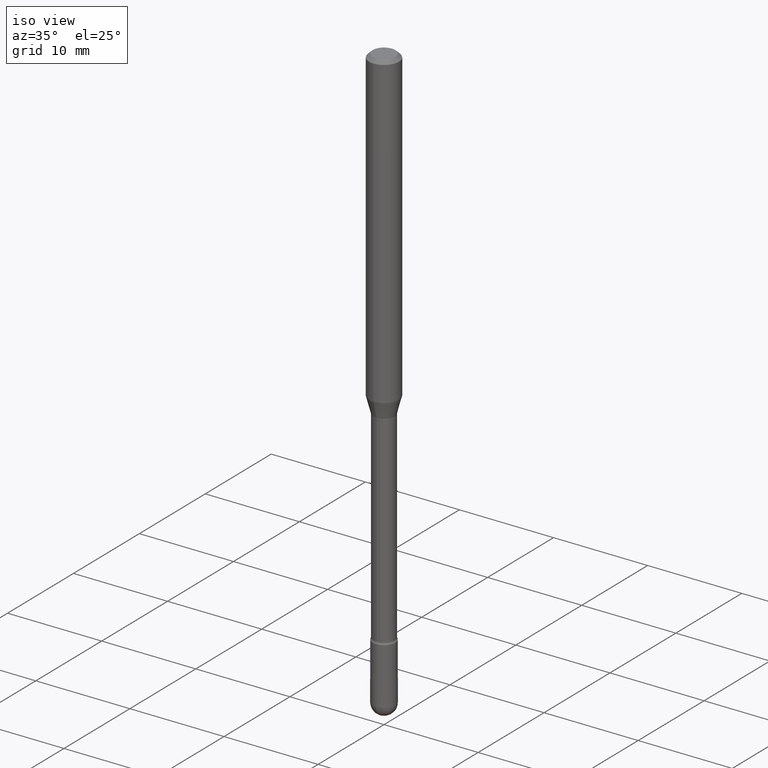
[diagram: clean part render]
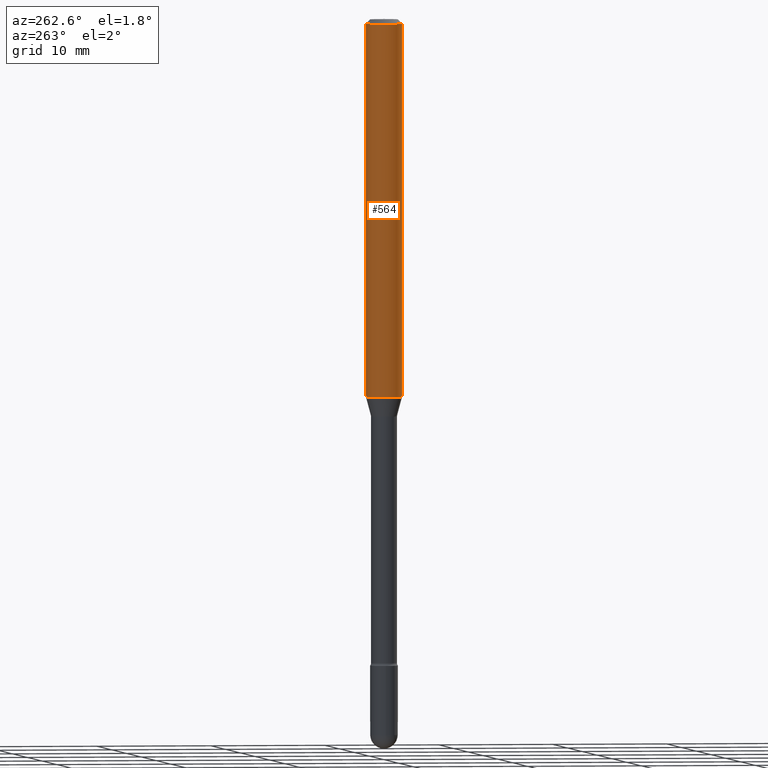
[diagram: tour spotlight — one face highlighted and labeled with its STEP entity id]
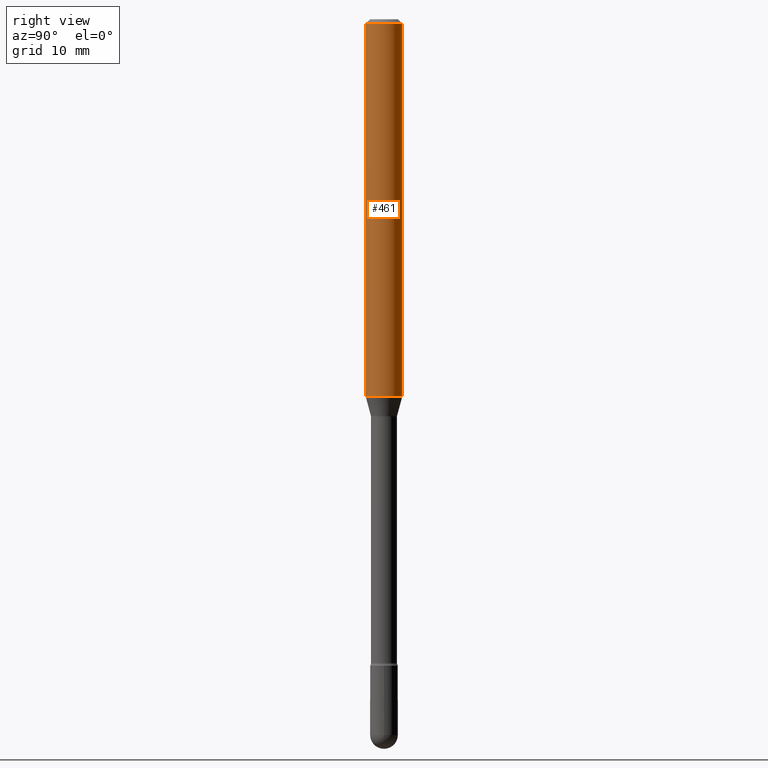
[diagram: tour spotlight — one face highlighted and labeled with its STEP entity id]
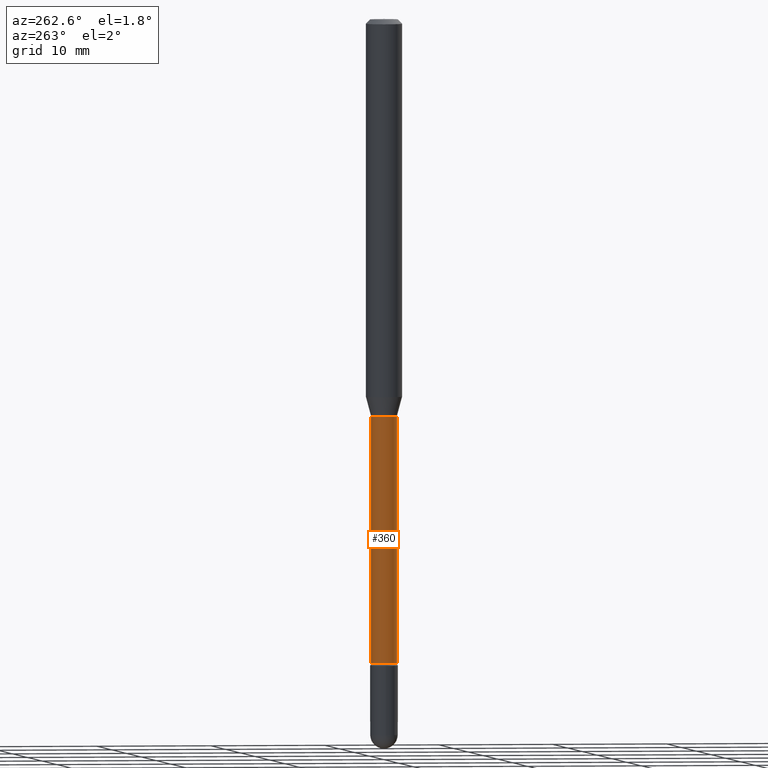
[diagram: tour spotlight — one face highlighted and labeled with its STEP entity id]
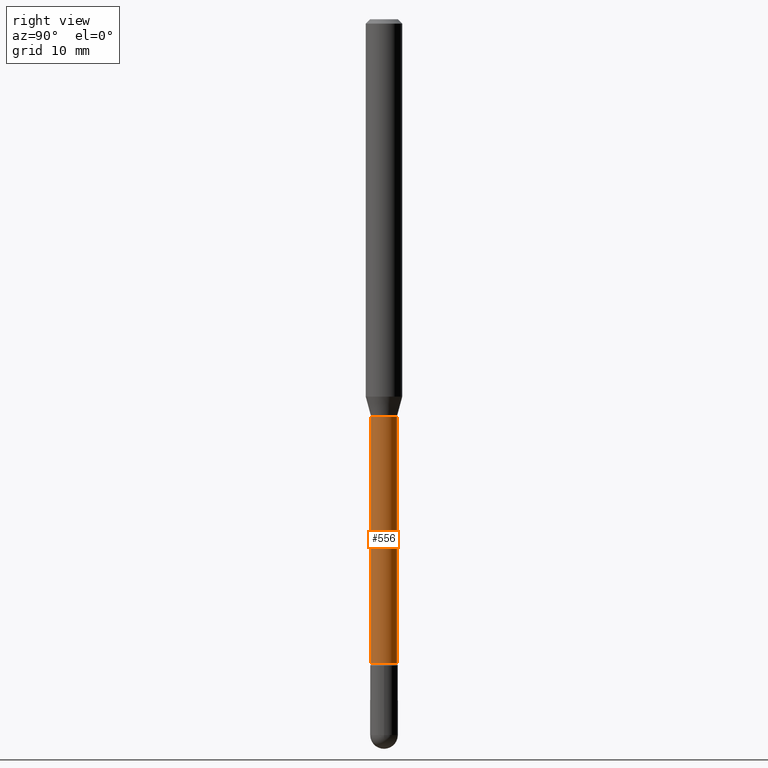
[diagram: tour spotlight — one face highlighted and labeled with its STEP entity id]
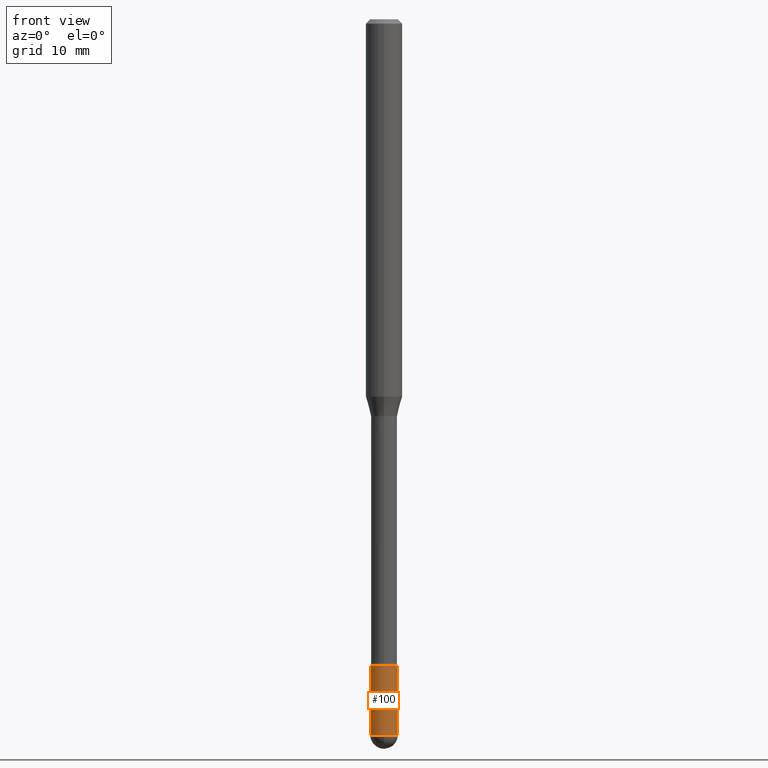
[diagram: tour spotlight — one face highlighted and labeled with its STEP entity id]
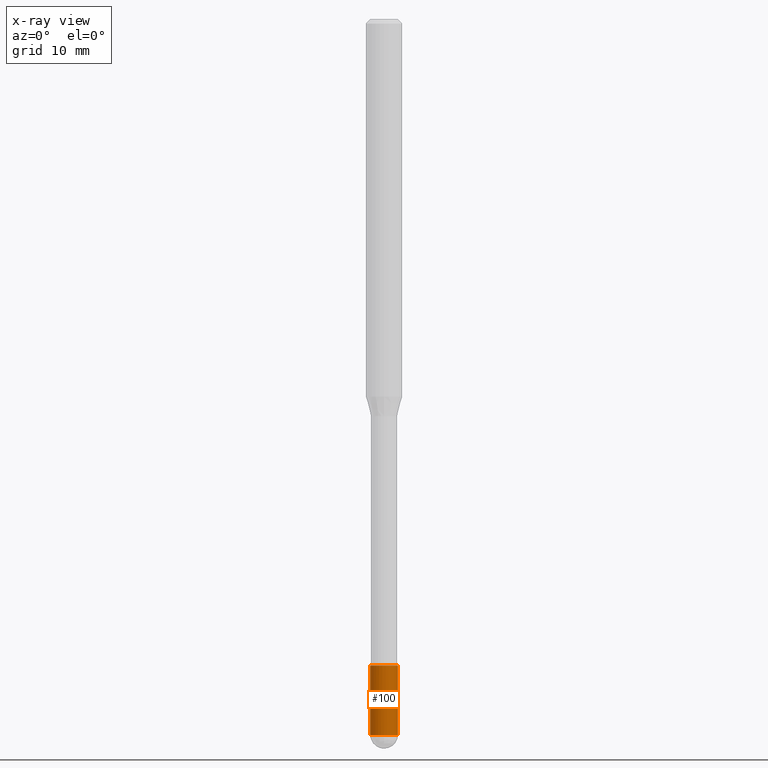
[diagram: x-ray of the same camera — body ghosted, this tour face saturated]
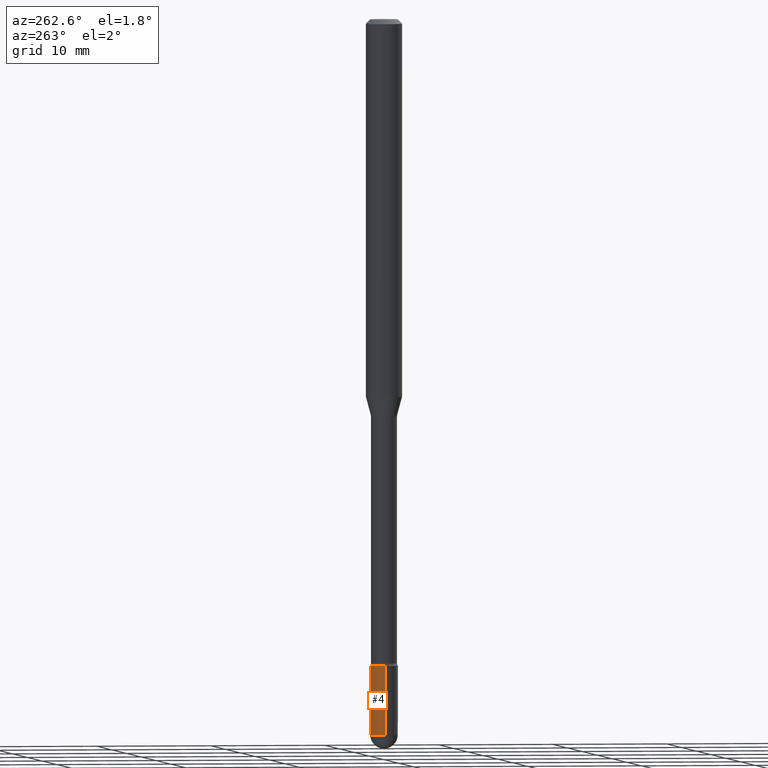
[diagram: tour spotlight — one face highlighted and labeled with its STEP entity id]
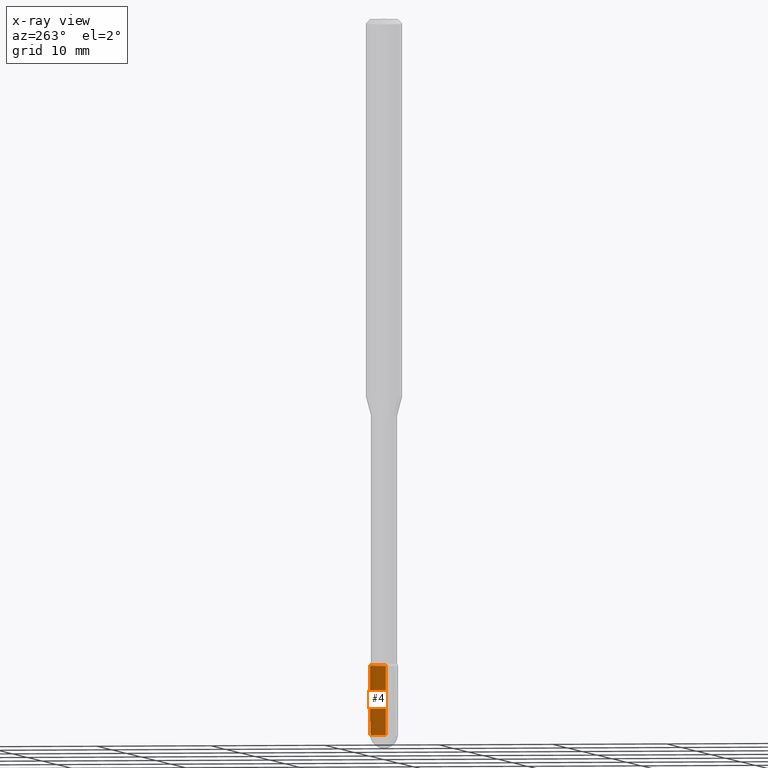
[diagram: x-ray of the same camera — body ghosted, this tour face saturated]
A machine part: a face-by-face anatomy tour. The part has 19 B-rep faces; the first image is the clean iso view, then the 6 largest visible faces are spotlighted one at a time (largest first), each with its STEP entity span.

Face 1 — auxiliary view, entity #564. In plain terms, the highlighted cylindrical surface (edge-blend (fillet) strip) has radius 1.5875 mm, axis along (-0, 0, 1).
Definition (entity closure, byte-faithful):
#13 = VERTEX_POINT ( 'NONE', #193 ) ;
#24 = ORIENTED_EDGE ( 'NONE', *, *, #188, .T. ) ;
#29 = DIRECTION ( 'NONE',  ( -2.445461781788735863E-29, 3.491491398178595118E-15, 1.000000000000000000 ) ) ;
#31 = CARTESIAN_POINT ( 'NONE',  ( 3.162918434258458957E-29, -4.515835245757259630E-15, -1.293382893084895846 ) ) ;
#37 = EDGE_CURVE ( 'NONE', #236, #245, #309, .T. ) ;
#83 = DIRECTION ( 'NONE',  ( -2.445461781788735863E-29, 3.491491398178595118E-15, 1.000000000000000000 ) ) ;
#85 = CIRCLE ( 'NONE', #356, 0.06250000000000000000 ) ;
#96 = VECTOR ( 'NONE', #529, 39.37007874015748143 ) ;
#101 = CARTESIAN_POINT ( 'NONE',  ( -4.364351673553916201E-16, -0.06250000000000000000, 6.962916112774082088E-16 ) ) ;
#111 = CARTESIAN_POINT ( 'NONE',  ( 3.668192672683123885E-31, -5.237237097267922061E-17, -0.01500000000000008271 ) ) ;
#127 = EDGE_CURVE ( 'NONE', #13, #214, #85, .T. ) ;
#165 = EDGE_CURVE ( 'NONE', #13, #236, #273, .T. ) ;
#171 = DIRECTION ( 'NONE',  ( -6.982962677686265922E-15, -1.000000000000000000, 4.370956789862821150E-15 ) ) ;
#188 = EDGE_CURVE ( 'NONE', #214, #245, #478, .T. ) ;
#193 = CARTESIAN_POINT ( 'NONE',  ( 4.440892098500943678E-16, 0.06249999999999551747, -1.293382893084896068 ) ) ;
#203 = CYLINDRICAL_SURFACE ( 'NONE', #513, 0.06250000000000000000 ) ;
#214 = VERTEX_POINT ( 'NONE', #224 ) ;
#224 = CARTESIAN_POINT ( 'NONE',  ( -4.364351673553597698E-16, -0.06250000000000448253, -1.293382893084895402 ) ) ;
#230 = EDGE_LOOP ( 'NONE', ( #253, #375, #24, #254 ) ) ;
#236 = VERTEX_POINT ( 'NONE', #451 ) ;
#245 = VERTEX_POINT ( 'NONE', #272 ) ;
#253 = ORIENTED_EDGE ( 'NONE', *, *, #165, .F. ) ;
#254 = ORIENTED_EDGE ( 'NONE', *, *, #37, .F. ) ;
#266 = DIRECTION ( 'NONE',  ( -2.445461781788736143E-29, 3.491491398178595118E-15, 1.000000000000000000 ) ) ;
#272 = CARTESIAN_POINT ( 'NONE',  ( -4.364351673553912750E-16, -0.06250000000000005551, -0.01499999999999986587 ) ) ;
#273 = LINE ( 'NONE', #487, #388 ) ;
#295 = DIRECTION ( 'NONE',  ( -6.982962677686265922E-15, -1.000000000000000000, 3.483106191921935554E-15 ) ) ;
#309 = CIRCLE ( 'NONE', #488, 0.06250000000000000000 ) ;
#331 = DIRECTION ( 'NONE',  ( -6.982962677686265922E-15, -1.000000000000000000, 3.491491398178594723E-15 ) ) ;
#356 = AXIS2_PLACEMENT_3D ( 'NONE', #31, #554, #171 ) ;
#375 = ORIENTED_EDGE ( 'NONE', *, *, #127, .T. ) ;
#380 = FACE_OUTER_BOUND ( 'NONE', #230, .T. ) ;
#388 = VECTOR ( 'NONE', #266, 39.37007874015748143 ) ;
#390 = CARTESIAN_POINT ( 'NONE',  ( -1.169113584055446105E-44, 1.669184350826100908E-30, 4.780733988912460139E-16 ) ) ;
#451 = CARTESIAN_POINT ( 'NONE',  ( 4.440892098500943678E-16, 0.06249999999999995143, -0.01500000000000030129 ) ) ;
#478 = LINE ( 'NONE', #101, #96 ) ;
#487 = CARTESIAN_POINT ( 'NONE',  ( 4.440892098500625669E-16, 0.06250000000000000000, 2.598551865050838684E-16 ) ) ;
#488 = AXIS2_PLACEMENT_3D ( 'NONE', #111, #29, #295 ) ;
#513 = AXIS2_PLACEMENT_3D ( 'NONE', #390, #83, #331 ) ;
#529 = DIRECTION ( 'NONE',  ( -2.445461781788736143E-29, 3.491491398178595118E-15, 1.000000000000000000 ) ) ;
#554 = DIRECTION ( 'NONE',  ( -2.445461781788735863E-29, 3.491491398178595118E-15, 1.000000000000000000 ) ) ;
#564 = ADVANCED_FACE ( 'NONE', ( #380 ), #203, .T. ) ;

Face 2 — right view, entity #461. In plain terms, the highlighted cylindrical surface (edge-blend (fillet) strip) has radius 1.5875 mm, axis along (-0, 0, 1).
Definition (entity closure, byte-faithful):
#13 = VERTEX_POINT ( 'NONE', #193 ) ;
#22 = FACE_OUTER_BOUND ( 'NONE', #491, .T. ) ;
#96 = VECTOR ( 'NONE', #529, 39.37007874015748143 ) ;
#101 = CARTESIAN_POINT ( 'NONE',  ( -4.364351673553916201E-16, -0.06250000000000000000, 6.962916112774082088E-16 ) ) ;
#107 = CARTESIAN_POINT ( 'NONE',  ( -1.169113584055446105E-44, 1.669184350826100908E-30, 4.780733988912460139E-16 ) ) ;
#130 = CIRCLE ( 'NONE', #287, 0.06250000000000000000 ) ;
#141 = DIRECTION ( 'NONE',  ( -6.982962677686265922E-15, -1.000000000000000000, 3.483106191921935554E-15 ) ) ;
#165 = EDGE_CURVE ( 'NONE', #13, #236, #273, .T. ) ;
#169 = ORIENTED_EDGE ( 'NONE', *, *, #204, .T. ) ;
#182 = DIRECTION ( 'NONE',  ( -2.445461781788735863E-29, 3.491491398178595118E-15, 1.000000000000000000 ) ) ;
#188 = EDGE_CURVE ( 'NONE', #214, #245, #478, .T. ) ;
#193 = CARTESIAN_POINT ( 'NONE',  ( 4.440892098500943678E-16, 0.06249999999999551747, -1.293382893084896068 ) ) ;
#197 = DIRECTION ( 'NONE',  ( -2.445461781788735863E-29, 3.491491398178595118E-15, 1.000000000000000000 ) ) ;
#200 = EDGE_CURVE ( 'NONE', #245, #236, #505, .T. ) ;
#204 = EDGE_CURVE ( 'NONE', #214, #13, #130, .T. ) ;
#214 = VERTEX_POINT ( 'NONE', #224 ) ;
#224 = CARTESIAN_POINT ( 'NONE',  ( -4.364351673553597698E-16, -0.06250000000000448253, -1.293382893084895402 ) ) ;
#227 = CARTESIAN_POINT ( 'NONE',  ( 3.668192672683123885E-31, -5.237237097267922061E-17, -0.01500000000000008271 ) ) ;
#236 = VERTEX_POINT ( 'NONE', #451 ) ;
#245 = VERTEX_POINT ( 'NONE', #272 ) ;
#266 = DIRECTION ( 'NONE',  ( -2.445461781788736143E-29, 3.491491398178595118E-15, 1.000000000000000000 ) ) ;
#272 = CARTESIAN_POINT ( 'NONE',  ( -4.364351673553912750E-16, -0.06250000000000005551, -0.01499999999999986587 ) ) ;
#273 = LINE ( 'NONE', #487, #388 ) ;
#287 = AXIS2_PLACEMENT_3D ( 'NONE', #409, #304, #354 ) ;
#304 = DIRECTION ( 'NONE',  ( -2.445461781788735863E-29, 3.491491398178595118E-15, 1.000000000000000000 ) ) ;
#347 = ORIENTED_EDGE ( 'NONE', *, *, #165, .T. ) ;
#354 = DIRECTION ( 'NONE',  ( -6.982962677686265922E-15, -1.000000000000000000, 4.370956789862821150E-15 ) ) ;
#388 = VECTOR ( 'NONE', #266, 39.37007874015748143 ) ;
#400 = ORIENTED_EDGE ( 'NONE', *, *, #200, .F. ) ;
#409 = CARTESIAN_POINT ( 'NONE',  ( 3.162918434258458957E-29, -4.515835245757259630E-15, -1.293382893084895846 ) ) ;
#433 = ORIENTED_EDGE ( 'NONE', *, *, #188, .F. ) ;
#451 = CARTESIAN_POINT ( 'NONE',  ( 4.440892098500943678E-16, 0.06249999999999995143, -0.01500000000000030129 ) ) ;
#457 = CYLINDRICAL_SURFACE ( 'NONE', #496, 0.06250000000000000000 ) ;
#459 = DIRECTION ( 'NONE',  ( -6.982962677686265922E-15, -1.000000000000000000, 3.491491398178594723E-15 ) ) ;
#461 = ADVANCED_FACE ( 'NONE', ( #22 ), #457, .T. ) ;
#478 = LINE ( 'NONE', #101, #96 ) ;
#487 = CARTESIAN_POINT ( 'NONE',  ( 4.440892098500625669E-16, 0.06250000000000000000, 2.598551865050838684E-16 ) ) ;
#491 = EDGE_LOOP ( 'NONE', ( #169, #347, #400, #433 ) ) ;
#496 = AXIS2_PLACEMENT_3D ( 'NONE', #107, #197, #459 ) ;
#505 = CIRCLE ( 'NONE', #562, 0.06250000000000000000 ) ;
#529 = DIRECTION ( 'NONE',  ( -2.445461781788736143E-29, 3.491491398178595118E-15, 1.000000000000000000 ) ) ;
#562 = AXIS2_PLACEMENT_3D ( 'NONE', #227, #182, #141 ) ;

Face 3 — auxiliary view, entity #360. In plain terms, the highlighted cylindrical surface (edge-blend (fillet) strip) has radius 1.1341 mm, axis along (-0, 0, 1).
Definition (entity closure, byte-faithful):
#11 = DIRECTION ( 'NONE',  ( -2.445461781788736143E-29, 3.491491398178595118E-15, 1.000000000000000000 ) ) ;
#12 = CARTESIAN_POINT ( 'NONE',  ( 3.330657290502586691E-29, -4.755323254966016992E-15, -1.361974787463811287 ) ) ;
#17 = EDGE_CURVE ( 'NONE', #306, #251, #174, .T. ) ;
#34 = DIRECTION ( 'NONE',  ( -6.982962677686265922E-15, -1.000000000000000000, 6.118360568117040476E-15 ) ) ;
#50 = FACE_OUTER_BOUND ( 'NONE', #386, .T. ) ;
#67 = VECTOR ( 'NONE', #11, 39.37007874015748143 ) ;
#70 = CYLINDRICAL_SURFACE ( 'NONE', #300, 0.04465000000000004382 ) ;
#71 = DIRECTION ( 'NONE',  ( -6.982962677686265922E-15, -1.000000000000000000, 6.118360568117050731E-15 ) ) ;
#75 = AXIS2_PLACEMENT_3D ( 'NONE', #12, #374, #71 ) ;
#90 = EDGE_CURVE ( 'NONE', #338, #306, #383, .T. ) ;
#98 = CIRCLE ( 'NONE', #237, 0.04465000000000007851 ) ;
#144 = CARTESIAN_POINT ( 'NONE',  ( -3.117892835586584493E-16, -0.04465000000000475533, -1.361974787463811065 ) ) ;
#164 = DIRECTION ( 'NONE',  ( -2.445461781788735863E-29, 3.491491398178595118E-15, 1.000000000000000000 ) ) ;
#166 = DIRECTION ( 'NONE',  ( -2.445461781788736143E-29, 3.491491398178595118E-15, 1.000000000000000000 ) ) ;
#174 = CIRCLE ( 'NONE', #75, 0.04465000000000000219 ) ;
#206 = ORIENTED_EDGE ( 'NONE', *, *, #366, .T. ) ;
#229 = DIRECTION ( 'NONE',  ( -6.982962677686265922E-15, -1.000000000000000000, 3.491491398178596301E-15 ) ) ;
#237 = AXIS2_PLACEMENT_3D ( 'NONE', #256, #164, #34 ) ;
#242 = CARTESIAN_POINT ( 'NONE',  ( -3.117892835586383826E-16, -0.04465000000000778069, -2.206203551853162637 ) ) ;
#251 = VERTEX_POINT ( 'NONE', #144 ) ;
#256 = CARTESIAN_POINT ( 'NONE',  ( 5.395186468903473555E-29, -7.702940723926383539E-15, -2.206203551853163081 ) ) ;
#284 = ORIENTED_EDGE ( 'NONE', *, *, #90, .F. ) ;
#300 = AXIS2_PLACEMENT_3D ( 'NONE', #410, #534, #229 ) ;
#306 = VERTEX_POINT ( 'NONE', #404 ) ;
#318 = LINE ( 'NONE', #420, #67 ) ;
#338 = VERTEX_POINT ( 'NONE', #524 ) ;
#360 = ADVANCED_FACE ( 'NONE', ( #50 ), #70, .T. ) ;
#366 = EDGE_CURVE ( 'NONE', #426, #251, #318, .T. ) ;
#374 = DIRECTION ( 'NONE',  ( -2.445461781788735863E-29, 3.491491398178595118E-15, 1.000000000000000000 ) ) ;
#383 = LINE ( 'NONE', #551, #444 ) ;
#386 = EDGE_LOOP ( 'NONE', ( #284, #447, #206, #399 ) ) ;
#399 = ORIENTED_EDGE ( 'NONE', *, *, #17, .F. ) ;
#404 = CARTESIAN_POINT ( 'NONE',  ( 3.172573315169389334E-16, 0.04464999999999524904, -1.361974787463811509 ) ) ;
#410 = CARTESIAN_POINT ( 'NONE',  ( -1.169113584055446105E-44, 1.669184350826100908E-30, 4.780733988912460139E-16 ) ) ;
#420 = CARTESIAN_POINT ( 'NONE',  ( -3.117892835586920745E-16, -0.04465000000000004382, 6.339684898199205096E-16 ) ) ;
#426 = VERTEX_POINT ( 'NONE', #242 ) ;
#444 = VECTOR ( 'NONE', #166, 39.37007874015748143 ) ;
#447 = ORIENTED_EDGE ( 'NONE', *, *, #540, .T. ) ;
#524 = CARTESIAN_POINT ( 'NONE',  ( 3.273825655015205278E-16, 0.04464999999999237634, -2.206203551853163081 ) ) ;
#534 = DIRECTION ( 'NONE',  ( -2.445461781788735863E-29, 3.491491398178595118E-15, 1.000000000000000000 ) ) ;
#540 = EDGE_CURVE ( 'NONE', #338, #426, #98, .T. ) ;
#551 = CARTESIAN_POINT ( 'NONE',  ( 3.172573315168849951E-16, 0.04465000000000004382, 3.221783079625716661E-16 ) ) ;

Face 4 — right view, entity #556. In plain terms, the highlighted cylindrical surface (edge-blend (fillet) strip) has radius 1.1341 mm, axis along (-0, 0, 1).
Definition (entity closure, byte-faithful):
#11 = DIRECTION ( 'NONE',  ( -2.445461781788736143E-29, 3.491491398178595118E-15, 1.000000000000000000 ) ) ;
#33 = AXIS2_PLACEMENT_3D ( 'NONE', #312, #485, #49 ) ;
#40 = DIRECTION ( 'NONE',  ( -6.982962677686265922E-15, -1.000000000000000000, 3.491491398178596301E-15 ) ) ;
#49 = DIRECTION ( 'NONE',  ( -6.982962677686265922E-15, -1.000000000000000000, 6.118360568117040476E-15 ) ) ;
#67 = VECTOR ( 'NONE', #11, 39.37007874015748143 ) ;
#77 = AXIS2_PLACEMENT_3D ( 'NONE', #250, #437, #40 ) ;
#90 = EDGE_CURVE ( 'NONE', #338, #306, #383, .T. ) ;
#144 = CARTESIAN_POINT ( 'NONE',  ( -3.117892835586584493E-16, -0.04465000000000475533, -1.361974787463811065 ) ) ;
#166 = DIRECTION ( 'NONE',  ( -2.445461781788736143E-29, 3.491491398178595118E-15, 1.000000000000000000 ) ) ;
#175 = CIRCLE ( 'NONE', #33, 0.04465000000000007851 ) ;
#192 = CARTESIAN_POINT ( 'NONE',  ( 3.330657290502586691E-29, -4.755323254966016992E-15, -1.361974787463811287 ) ) ;
#195 = ORIENTED_EDGE ( 'NONE', *, *, #366, .F. ) ;
#210 = FACE_OUTER_BOUND ( 'NONE', #260, .T. ) ;
#220 = ORIENTED_EDGE ( 'NONE', *, *, #90, .T. ) ;
#242 = CARTESIAN_POINT ( 'NONE',  ( -3.117892835586383826E-16, -0.04465000000000778069, -2.206203551853162637 ) ) ;
#250 = CARTESIAN_POINT ( 'NONE',  ( -1.169113584055446105E-44, 1.669184350826100908E-30, 4.780733988912460139E-16 ) ) ;
#251 = VERTEX_POINT ( 'NONE', #144 ) ;
#252 = CYLINDRICAL_SURFACE ( 'NONE', #77, 0.04465000000000004382 ) ;
#255 = CIRCLE ( 'NONE', #274, 0.04465000000000000219 ) ;
#260 = EDGE_LOOP ( 'NONE', ( #364, #220, #281, #195 ) ) ;
#274 = AXIS2_PLACEMENT_3D ( 'NONE', #192, #321, #371 ) ;
#281 = ORIENTED_EDGE ( 'NONE', *, *, #413, .F. ) ;
#306 = VERTEX_POINT ( 'NONE', #404 ) ;
#312 = CARTESIAN_POINT ( 'NONE',  ( 5.395186468903473555E-29, -7.702940723926383539E-15, -2.206203551853163081 ) ) ;
#318 = LINE ( 'NONE', #420, #67 ) ;
#321 = DIRECTION ( 'NONE',  ( -2.445461781788735863E-29, 3.491491398178595118E-15, 1.000000000000000000 ) ) ;
#338 = VERTEX_POINT ( 'NONE', #524 ) ;
#339 = EDGE_CURVE ( 'NONE', #426, #338, #175, .T. ) ;
#364 = ORIENTED_EDGE ( 'NONE', *, *, #339, .T. ) ;
#366 = EDGE_CURVE ( 'NONE', #426, #251, #318, .T. ) ;
#371 = DIRECTION ( 'NONE',  ( -6.982962677686265922E-15, -1.000000000000000000, 6.118360568117050731E-15 ) ) ;
#383 = LINE ( 'NONE', #551, #444 ) ;
#404 = CARTESIAN_POINT ( 'NONE',  ( 3.172573315169389334E-16, 0.04464999999999524904, -1.361974787463811509 ) ) ;
#413 = EDGE_CURVE ( 'NONE', #251, #306, #255, .T. ) ;
#420 = CARTESIAN_POINT ( 'NONE',  ( -3.117892835586920745E-16, -0.04465000000000004382, 6.339684898199205096E-16 ) ) ;
#426 = VERTEX_POINT ( 'NONE', #242 ) ;
#437 = DIRECTION ( 'NONE',  ( -2.445461781788735863E-29, 3.491491398178595118E-15, 1.000000000000000000 ) ) ;
#444 = VECTOR ( 'NONE', #166, 39.37007874015748143 ) ;
#485 = DIRECTION ( 'NONE',  ( -2.445461781788735863E-29, 3.491491398178595118E-15, 1.000000000000000000 ) ) ;
#524 = CARTESIAN_POINT ( 'NONE',  ( 3.273825655015205278E-16, 0.04464999999999237634, -2.206203551853163081 ) ) ;
#551 = CARTESIAN_POINT ( 'NONE',  ( 3.172573315168849951E-16, 0.04465000000000004382, 3.221783079625716661E-16 ) ) ;
#556 = ADVANCED_FACE ( 'NONE', ( #210 ), #252, .T. ) ;

Face 5 — front view, entity #100. An x-ray twin of the same camera follows (body ghosted, this face saturated) — the face is partly hidden behind the body. In plain terms, the highlighted cylindrical surface (edge-blend (fillet) strip) has radius 1.2065 mm, axis along (-0, 0, 1).
Definition (entity closure, byte-faithful):
#20 = CARTESIAN_POINT ( 'NONE',  ( 0.000000000000000000, 0.000000000000000000, 0.000000000000000000 ) ) ;
#23 = DIRECTION ( 'NONE',  ( 1.000000000000000000, -6.982962677686266711E-15, 4.876176775795934672E-29 ) ) ;
#26 = VECTOR ( 'NONE', #120, 39.37007874015748143 ) ;
#28 = CARTESIAN_POINT ( 'NONE',  ( 5.416713405700078055E-29, -7.733631165537568465E-15, -2.215000000000000302 ) ) ;
#52 = EDGE_CURVE ( 'NONE', #89, #117, #377, .T. ) ;
#60 = FACE_OUTER_BOUND ( 'NONE', #198, .T. ) ;
#62 = EDGE_CURVE ( 'NONE', #464, #89, #183, .T. ) ;
#69 = CARTESIAN_POINT ( 'NONE',  ( 5.997512247169047773E-29, -8.562857983512815004E-15, -2.452500000000000124 ) ) ;
#89 = VERTEX_POINT ( 'NONE', #466 ) ;
#100 = ADVANCED_FACE ( 'NONE', ( #60 ), #408, .T. ) ;
#109 = DIRECTION ( 'NONE',  ( 1.000000000000000000, -6.982962677686280910E-15, 0.000000000000000000 ) ) ;
#115 = EDGE_CURVE ( 'NONE', #464, #134, #381, .T. ) ;
#117 = VERTEX_POINT ( 'NONE', #431 ) ;
#120 = DIRECTION ( 'NONE',  ( -2.445468806185136877E-29, 3.491481338843145188E-15, 1.000000000000000000 ) ) ;
#122 = DIRECTION ( 'NONE',  ( -2.445468806185136597E-29, 3.491481338843145583E-15, 1.000000000000000000 ) ) ;
#123 = DIRECTION ( 'NONE',  ( -2.445468806185136597E-29, 3.491481338843145583E-15, 1.000000000000000000 ) ) ;
#134 = VERTEX_POINT ( 'NONE', #173 ) ;
#146 = DIRECTION ( 'NONE',  ( -2.445468806185136597E-29, 3.491481338843145583E-15, 1.000000000000000000 ) ) ;
#151 = DIRECTION ( 'NONE',  ( 1.000000000000000000, -6.982962677686280910E-15, 0.000000000000000000 ) ) ;
#159 = AXIS2_PLACEMENT_3D ( 'NONE', #28, #123, #506 ) ;
#173 = CARTESIAN_POINT ( 'NONE',  ( -0.04749999999999999362, -7.810736775039144241E-15, -2.215000000000000302 ) ) ;
#180 = VERTEX_POINT ( 'NONE', #275 ) ;
#183 = CIRCLE ( 'NONE', #216, 0.04750000000000000749 ) ;
#198 = EDGE_LOOP ( 'NONE', ( #358, #542, #421, #291, #418 ) ) ;
#199 = CARTESIAN_POINT ( 'NONE',  ( 0.04750000000000000749, -3.316907271900977082E-16, 2.316183968503069432E-30 ) ) ;
#209 = AXIS2_PLACEMENT_3D ( 'NONE', #20, #494, #23 ) ;
#216 = AXIS2_PLACEMENT_3D ( 'NONE', #69, #146, #151 ) ;
#248 = CARTESIAN_POINT ( 'NONE',  ( 5.997512247169047773E-29, -8.562857983512815004E-15, -2.452500000000000124 ) ) ;
#275 = CARTESIAN_POINT ( 'NONE',  ( 0.04749999999999999362, -8.065321892727665188E-15, -2.215000000000000302 ) ) ;
#291 = ORIENTED_EDGE ( 'NONE', *, *, #427, .T. ) ;
#297 = DIRECTION ( 'NONE',  ( -2.445468806185136877E-29, 3.491481338843145188E-15, 1.000000000000000000 ) ) ;
#301 = CIRCLE ( 'NONE', #159, 0.04749999999999999362 ) ;
#334 = VECTOR ( 'NONE', #297, 39.37007874015748143 ) ;
#358 = ORIENTED_EDGE ( 'NONE', *, *, #115, .F. ) ;
#363 = CARTESIAN_POINT ( 'NONE',  ( -0.04750000000000000749, -7.810736775039144241E-15, -2.452500000000000124 ) ) ;
#377 = CIRCLE ( 'NONE', #560, 0.04750000000000000749 ) ;
#381 = LINE ( 'NONE', #549, #334 ) ;
#408 = CYLINDRICAL_SURFACE ( 'NONE', #209, 0.04750000000000000749 ) ;
#418 = ORIENTED_EDGE ( 'NONE', *, *, #547, .F. ) ;
#421 = ORIENTED_EDGE ( 'NONE', *, *, #52, .T. ) ;
#427 = EDGE_CURVE ( 'NONE', #117, #180, #546, .T. ) ;
#431 = CARTESIAN_POINT ( 'NONE',  ( 0.04750000000000000749, -8.479935301715289246E-15, -2.452500000000000124 ) ) ;
#464 = VERTEX_POINT ( 'NONE', #363 ) ;
#466 = CARTESIAN_POINT ( 'NONE',  ( -3.375077994859874909E-16, -0.04750000000000855621, -2.452499999999999680 ) ) ;
#494 = DIRECTION ( 'NONE',  ( -2.445468806185136597E-29, 3.491481338843145583E-15, 1.000000000000000000 ) ) ;
#506 = DIRECTION ( 'NONE',  ( 1.000000000000000000, -6.982962677686261977E-15, 0.000000000000000000 ) ) ;
#542 = ORIENTED_EDGE ( 'NONE', *, *, #62, .T. ) ;
#546 = LINE ( 'NONE', #199, #26 ) ;
#547 = EDGE_CURVE ( 'NONE', #134, #180, #301, .T. ) ;
#549 = CARTESIAN_POINT ( 'NONE',  ( -0.04750000000000000749, 3.375077994860476415E-16, -2.336494167871080260E-30 ) ) ;
#560 = AXIS2_PLACEMENT_3D ( 'NONE', #248, #122, #109 ) ;

Face 6 — auxiliary view, entity #4. An x-ray twin of the same camera follows (body ghosted, this face saturated) — the face is partly hidden behind the body. In plain terms, the highlighted cylindrical surface (edge-blend (fillet) strip) has radius 1.2065 mm, axis along (-0, 0, 1).
Definition (entity closure, byte-faithful):
#3 = AXIS2_PLACEMENT_3D ( 'NONE', #271, #359, #448 ) ;
#4 = ADVANCED_FACE ( 'NONE', ( #294 ), #468, .T. ) ;
#26 = VECTOR ( 'NONE', #120, 39.37007874015748143 ) ;
#48 = AXIS2_PLACEMENT_3D ( 'NONE', #340, #170, #471 ) ;
#57 = DIRECTION ( 'NONE',  ( 1.000000000000000000, -6.982962677686266711E-15, 4.876176775795934672E-29 ) ) ;
#80 = CARTESIAN_POINT ( 'NONE',  ( 0.000000000000000000, 0.000000000000000000, 0.000000000000000000 ) ) ;
#84 = ORIENTED_EDGE ( 'NONE', *, *, #495, .T. ) ;
#86 = AXIS2_PLACEMENT_3D ( 'NONE', #181, #99, #102 ) ;
#99 = DIRECTION ( 'NONE',  ( -2.445468806185136597E-29, 3.491481338843145583E-15, 1.000000000000000000 ) ) ;
#102 = DIRECTION ( 'NONE',  ( 1.000000000000000000, -6.982962677686280910E-15, 0.000000000000000000 ) ) ;
#115 = EDGE_CURVE ( 'NONE', #464, #134, #381, .T. ) ;
#117 = VERTEX_POINT ( 'NONE', #431 ) ;
#120 = DIRECTION ( 'NONE',  ( -2.445468806185136877E-29, 3.491481338843145188E-15, 1.000000000000000000 ) ) ;
#134 = VERTEX_POINT ( 'NONE', #173 ) ;
#137 = CIRCLE ( 'NONE', #86, 0.04750000000000000749 ) ;
#170 = DIRECTION ( 'NONE',  ( -2.445468806185136597E-29, 3.491481338843145583E-15, 1.000000000000000000 ) ) ;
#172 = EDGE_CURVE ( 'NONE', #117, #276, #137, .T. ) ;
#173 = CARTESIAN_POINT ( 'NONE',  ( -0.04749999999999999362, -7.810736775039144241E-15, -2.215000000000000302 ) ) ;
#180 = VERTEX_POINT ( 'NONE', #275 ) ;
#181 = CARTESIAN_POINT ( 'NONE',  ( 5.997512247169047773E-29, -8.562857983512815004E-15, -2.452500000000000124 ) ) ;
#199 = CARTESIAN_POINT ( 'NONE',  ( 0.04750000000000000749, -3.316907271900977082E-16, 2.316183968503069432E-30 ) ) ;
#208 = ORIENTED_EDGE ( 'NONE', *, *, #172, .T. ) ;
#271 = CARTESIAN_POINT ( 'NONE',  ( 5.416713405700078055E-29, -7.733631165537568465E-15, -2.215000000000000302 ) ) ;
#275 = CARTESIAN_POINT ( 'NONE',  ( 0.04749999999999999362, -8.065321892727665188E-15, -2.215000000000000302 ) ) ;
#276 = VERTEX_POINT ( 'NONE', #352 ) ;
#279 = DIRECTION ( 'NONE',  ( -2.445468806185136597E-29, 3.491481338843145583E-15, 1.000000000000000000 ) ) ;
#294 = FACE_OUTER_BOUND ( 'NONE', #557, .T. ) ;
#297 = DIRECTION ( 'NONE',  ( -2.445468806185136877E-29, 3.491481338843145188E-15, 1.000000000000000000 ) ) ;
#327 = CIRCLE ( 'NONE', #3, 0.04749999999999999362 ) ;
#329 = EDGE_CURVE ( 'NONE', #180, #134, #327, .T. ) ;
#334 = VECTOR ( 'NONE', #297, 39.37007874015748143 ) ;
#340 = CARTESIAN_POINT ( 'NONE',  ( 5.997512247169047773E-29, -8.562857983512815004E-15, -2.452500000000000124 ) ) ;
#352 = CARTESIAN_POINT ( 'NONE',  ( 3.316907271901575630E-16, 0.04749999999999143102, -2.452500000000000568 ) ) ;
#359 = DIRECTION ( 'NONE',  ( -2.445468806185136597E-29, 3.491481338843145583E-15, 1.000000000000000000 ) ) ;
#363 = CARTESIAN_POINT ( 'NONE',  ( -0.04750000000000000749, -7.810736775039144241E-15, -2.452500000000000124 ) ) ;
#381 = LINE ( 'NONE', #549, #334 ) ;
#422 = AXIS2_PLACEMENT_3D ( 'NONE', #80, #279, #57 ) ;
#427 = EDGE_CURVE ( 'NONE', #117, #180, #546, .T. ) ;
#431 = CARTESIAN_POINT ( 'NONE',  ( 0.04750000000000000749, -8.479935301715289246E-15, -2.452500000000000124 ) ) ;
#438 = ORIENTED_EDGE ( 'NONE', *, *, #427, .F. ) ;
#448 = DIRECTION ( 'NONE',  ( 1.000000000000000000, -6.982962677686261977E-15, 0.000000000000000000 ) ) ;
#464 = VERTEX_POINT ( 'NONE', #363 ) ;
#468 = CYLINDRICAL_SURFACE ( 'NONE', #422, 0.04750000000000000749 ) ;
#471 = DIRECTION ( 'NONE',  ( 1.000000000000000000, -6.982962677686280910E-15, 0.000000000000000000 ) ) ;
#495 = EDGE_CURVE ( 'NONE', #276, #464, #553, .T. ) ;
#546 = LINE ( 'NONE', #199, #26 ) ;
#548 = ORIENTED_EDGE ( 'NONE', *, *, #115, .T. ) ;
#549 = CARTESIAN_POINT ( 'NONE',  ( -0.04750000000000000749, 3.375077994860476415E-16, -2.336494167871080260E-30 ) ) ;
#553 = CIRCLE ( 'NONE', #48, 0.04750000000000000749 ) ;
#557 = EDGE_LOOP ( 'NONE', ( #84, #548, #558, #438, #208 ) ) ;
#558 = ORIENTED_EDGE ( 'NONE', *, *, #329, .F. ) ;